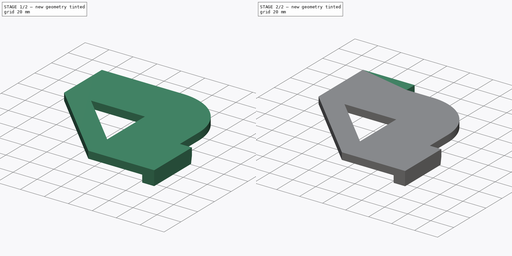
[diagram: build sequence overview — one tinted view per stage of 2, left to right]
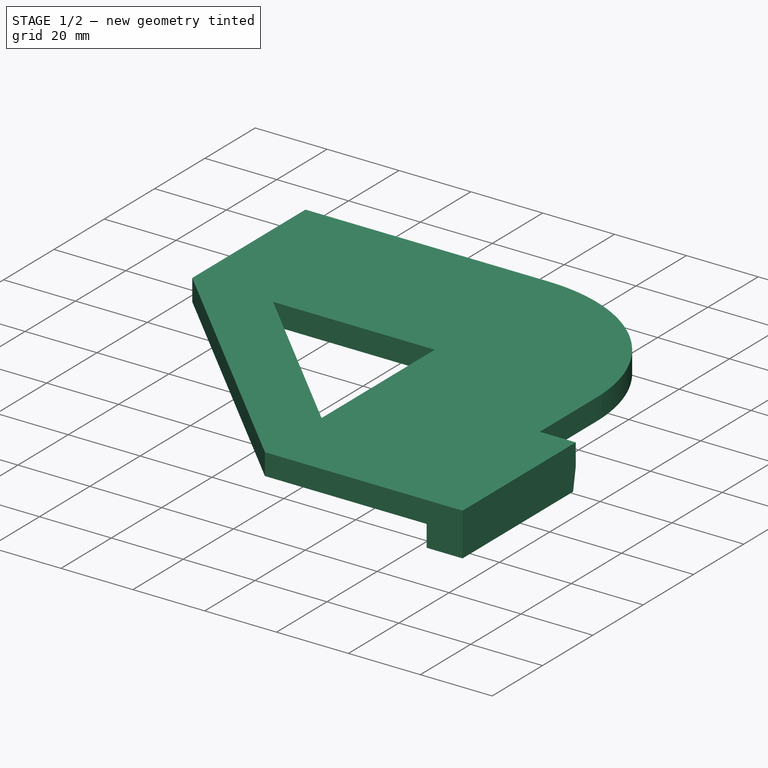
[diagram: stage 1 of 2 — iso view after this stage's code; geometry added in this stage tinted green]
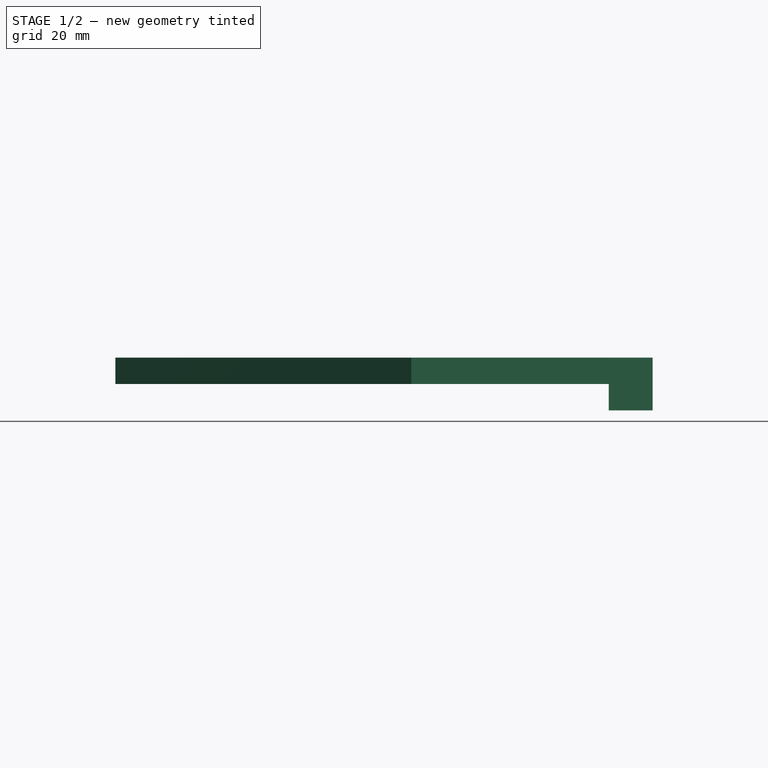
[diagram: stage 1 of 2 — front view after this stage's code; geometry added in this stage tinted green]
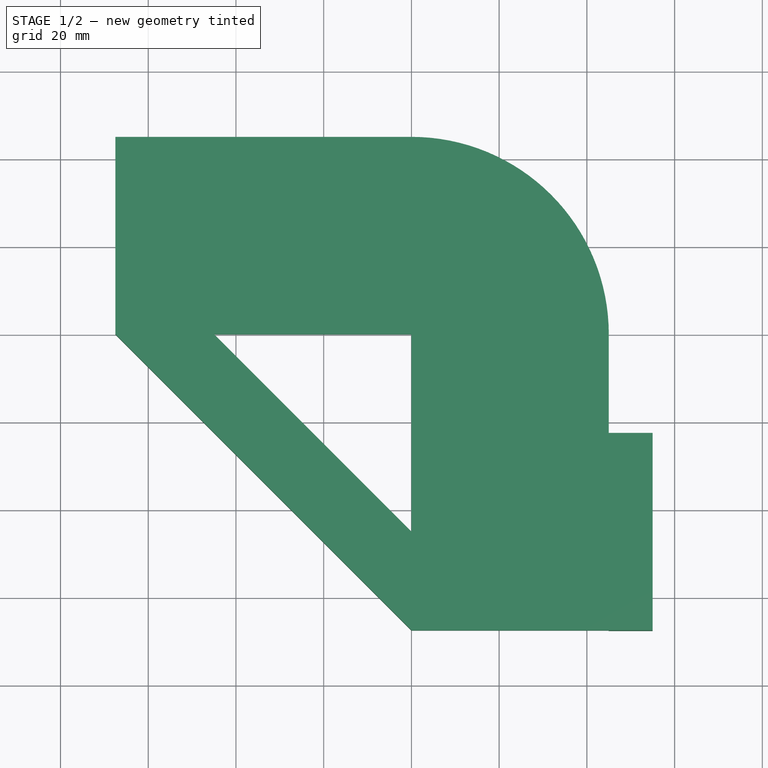
[diagram: stage 1 of 2 — top view after this stage's code; geometry added in this stage tinted green]
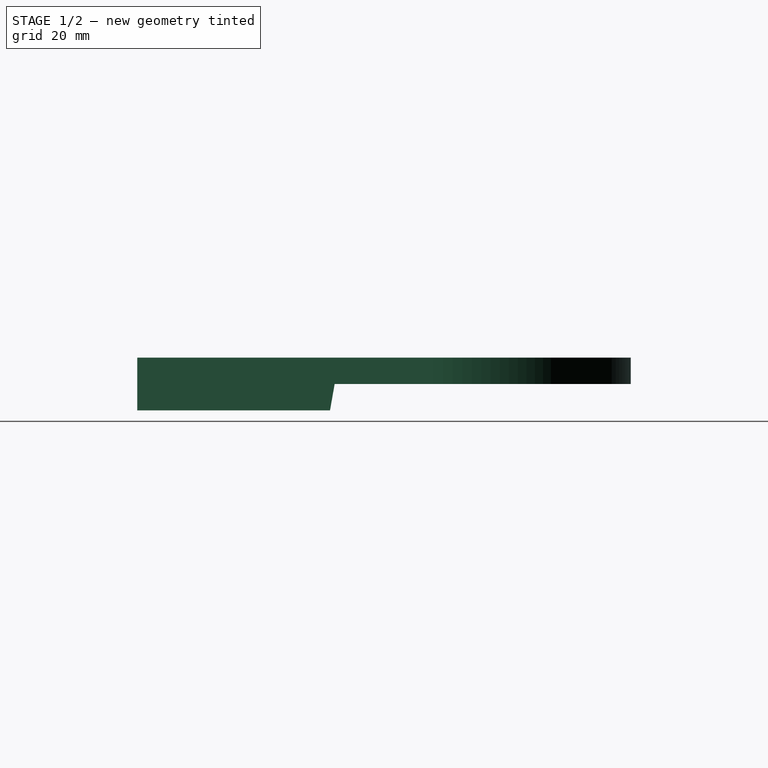
[diagram: stage 1 of 2 — right view after this stage's code; geometry added in this stage tinted green]
FCSTD DOCUMENT  (FreeCAD 1.0R39319 (Git))
Label: router-jig-radius
License: All rights reserved
LicenseURL: http://en.wikipedia.org/wiki/All_rights_reserved
objects: Sketcher::SketchObject×2, PartDesign::Pad×2, PartDesign::Plane×2, Spreadsheet::Sheet×1, PartDesign::Mirrored×1, PartDesign::Body×1
note: 15 computed .brp shape members not serialized (recipe doc carries the construction recipe); baked Part::Feature solids carry a one-line shape summary decoded from their .brp

FEATURE [Spreadsheet::Sheet] Spreadsheet
  cells = A1='radius; B1(radius)=45; A2='thickness; B2(thickness)=6; A3='anchor_thickness; B3(anchor_thickness)=10; A4='min_width; B4(min_width)=40
FEATURE [Sketcher::SketchObject] Sketch
  ArcFitTolerance = 1e-06
  AttachmentSupport = -> [XY_Plane]
  FullyConstrained = true
  MakeInternals = false
  MapMode = 5
  expr: Constraints[25] = max(Spreadsheet.radius; Spreadsheet.min_width - 10)
  expr: Constraints[3] = Spreadsheet.radius
  expr: Constraints[9] = max(Spreadsheet.radius * 1.5; Spreadsheet.min_width)
  sketch-geometry (9):
    g0: ArcOfCircle CenterX=0 CenterY=0 CenterZ=0 NormalX=0 NormalY=0 NormalZ=1 AngleXU=0 Radius=45 StartAngle=0 EndAngle=1.5708
    g1: LineSegment StartX=2.8e-15 StartY=45 StartZ=0 EndX=-67.5 EndY=45 EndZ=0
    g2: LineSegment StartX=45 StartY=0 StartZ=0 EndX=45 EndY=-67.5 EndZ=0
    g3: LineSegment StartX=-67.5 StartY=45 StartZ=0 EndX=-67.5 EndY=0 EndZ=0
    g4: LineSegment StartX=45 StartY=-67.5 StartZ=0 EndX=0 EndY=-67.5 EndZ=0
    g5: LineSegment StartX=-67.5 StartY=0 StartZ=0 EndX=0 EndY=-67.5 EndZ=0
    g6: LineSegment StartX=0 StartY=0 StartZ=0 EndX=-45 EndY=0 EndZ=0
    g7: LineSegment StartX=-45 StartY=0 StartZ=0 EndX=0 EndY=-45 EndZ=0
    g8: LineSegment StartX=0 StartY=-45 StartZ=0 EndX=0 EndY=0 EndZ=0
  constraints (26):
    c: Coincident(g0,g-1)
    c: PointOnObject(g0,g-1)
    c: PointOnObject(g0,g-2)
    c: Radius(g0) = 45
    c: Coincident(g1,g0)
    c: Horizontal(g1)
    c: Coincident(g2,g0)
    c: Vertical(g2)
    c: Equal(g2,g1)
    c: DistanceX(g1,g1) = 67.5
    c: Coincident(g3,g1)
    c: PointOnObject(g3,g-1)
    c: Vertical(g3)
    c: Coincident(g4,g2)
    c: PointOnObject(g4,g-2)
    c: Horizontal(g4)
    c: Coincident(g5,g3)
    c: Coincident(g5,g4)
    c: Coincident(g6,g0)
    c: PointOnObject(g6,g-1)
    c: Coincident(g6,g7)
    c: PointOnObject(g7,g-2)
    c: Coincident(g7,g8)
    c: Coincident(g8,g6)
    c: Equal(g6,g8)
    c: DistanceX(g6,g6) = 45
FEATURE [PartDesign::Pad] Pad
  Direction = (0,0,1)
  Length = 6
  Length2 = 10
  Profile = -> Sketch
  ReferenceAxis = -> Sketch [N_Axis]
  Refine = true
  Suppressed = false
  Type = 0
  expr: Length = Spreadsheet.thickness
FEATURE [PartDesign::Plane] DatumPlane
  AttachmentOffset = pos=(0,0,45) rot=(0,0,1;0rad)
  AttachmentSupport = -> [YZ_Plane]
  Length = 138.152
  MapMode = 5
  Placement = pos=(45,0,0) rot=(0.57735,0.57735,0.57735;2.0944rad)
  ResizeMode = 0
  Width = 65.6525
  expr: .AttachmentOffset.Base.z = Spreadsheet.radius
FEATURE [Sketcher::SketchObject] Sketch001
  ArcFitTolerance = 1e-06
  AttachmentSupport = -> [DatumPlane]
  FullyConstrained = true
  MakeInternals = false
  MapMode = 5
  Placement = pos=(45,0,0) rot=(0.57735,0.57735,0.57735;2.0944rad)
  expr: Constraints[5] = Spreadsheet.thickness
  expr: Constraints[6] = 2 * Spreadsheet.thickness
  expr: Constraints[7] = min(Spreadsheet.radius; max(Spreadsheet.radius * 2 - 20; 5))
  expr: Constraints[8] = Spreadsheet.radius * 1.5
  sketch-geometry (5):
    g0: LineSegment StartX=-67.5 StartY=6 StartZ=0 EndX=-67.5 EndY=-6 EndZ=0
    g1: LineSegment StartX=-67.5 StartY=-6 StartZ=0 EndX=-23.558 EndY=-6 EndZ=0
    g2: LineSegment StartX=-22.5 StartY=6 StartZ=0 EndX=-67.5 EndY=6 EndZ=0
    g3: LineSegment StartX=-22.5 StartY=6 StartZ=0 EndX=-22.5 EndY=0 EndZ=0
    g4: LineSegment StartX=-22.5 StartY=0 StartZ=0 EndX=-23.558 EndY=-6 EndZ=0
  constraints (15):
    c: Coincident(g0,g1)
    c: Coincident(g2,g0)
    c: Vertical(g0)
    c: Horizontal(g1)
    c: Horizontal(g2)
    c: DistanceY(g-1,g0) = 6
    c: DistanceY(g0,g0) = 12
    c: DistanceX(g2,g2) = 45
    c: Distance(g0,g-2) = 67.5
    c: Coincident(g3,g2)
    c: PointOnObject(g3,g-1)
    c: Vertical(g3)
    c: Coincident(g4,g3)
    c: Angle(g2,g4) = 1.39626
    c: Coincident(g4,g1)
FEATURE [PartDesign::Pad] Pad001
  BaseFeature = -> Pad
  Direction = (1,0,0)
  Length = 10
  Length2 = 10
  Profile = -> Sketch001
  ReferenceAxis = -> Sketch001 [N_Axis]
  Refine = true
  Suppressed = false
  Type = 0
  expr: Length = Spreadsheet.anchor_thickness
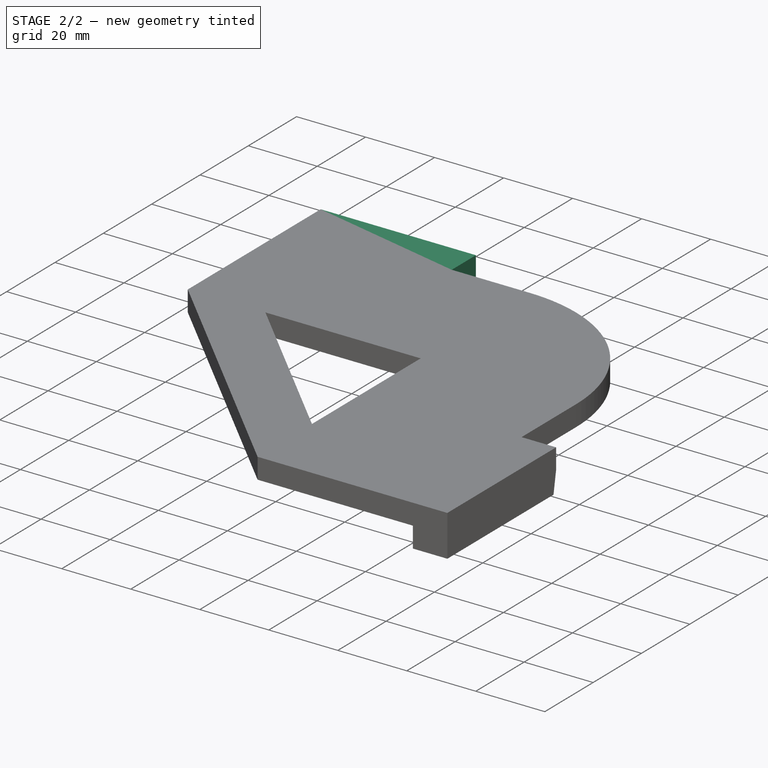
[diagram: stage 2 of 2 — iso view after this stage's code; geometry added in this stage tinted green]
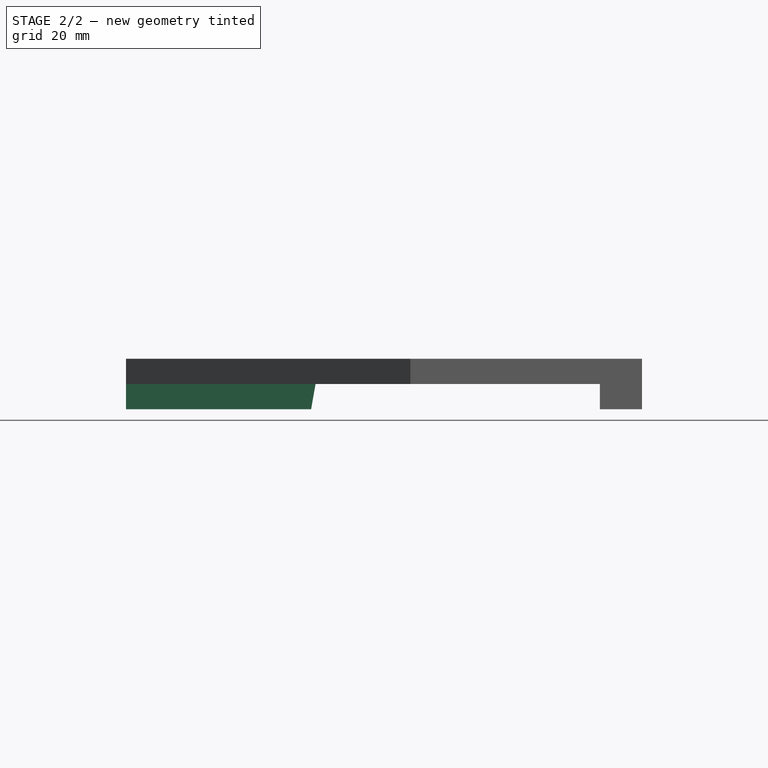
[diagram: stage 2 of 2 — front view after this stage's code; geometry added in this stage tinted green]
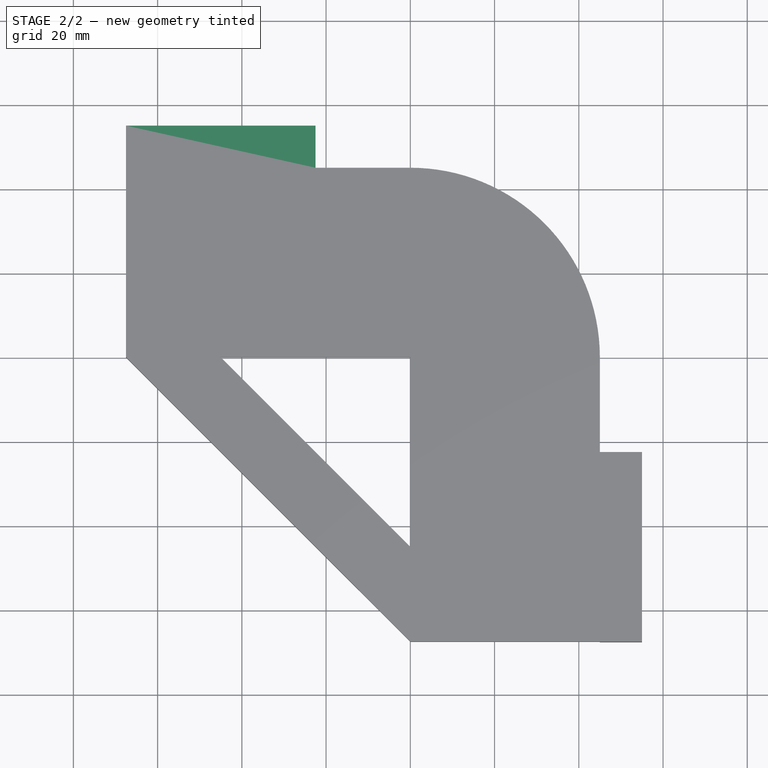
[diagram: stage 2 of 2 — top view after this stage's code; geometry added in this stage tinted green]
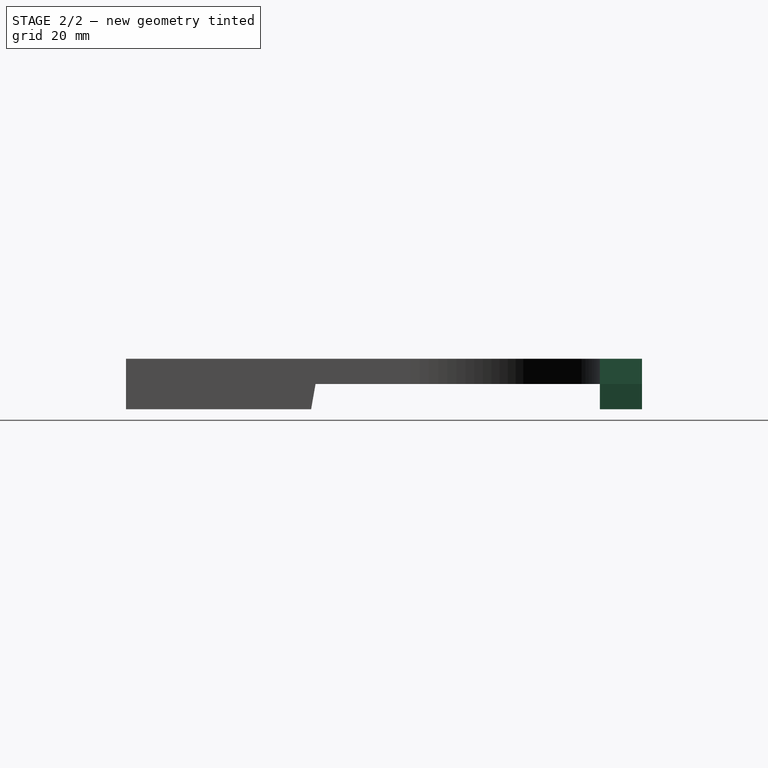
[diagram: stage 2 of 2 — right view after this stage's code; geometry added in this stage tinted green]
FEATURE [PartDesign::Plane] DatumPlane001
  AttachmentOffset = pos=(0,0,0) rot=(0,1,0;2.35619rad)
  AttachmentSupport = -> [YZ_Plane]
  Length = 191.855
  MapMode = 5
  Placement = pos=(0,0,0) rot=(-0.281085,0.678598,0.678598;3.68962rad)
  ResizeMode = 0
  Width = 68.614
FEATURE [PartDesign::Mirrored] Mirrored
  BaseFeature = -> Pad001
  MirrorPlane = -> DatumPlane001
  Originals = -> [Pad001]
  Refine = true
  Suppressed = false
  TransformMode = 0
FEATURE [PartDesign::Body] Body
  AllowCompound = false
  Group = -> [Sketch,Pad,DatumPlane,Sketch001,Pad001,DatumPlane001,Mirrored]
  Origin = -> Origin
  Tip = -> Mirrored
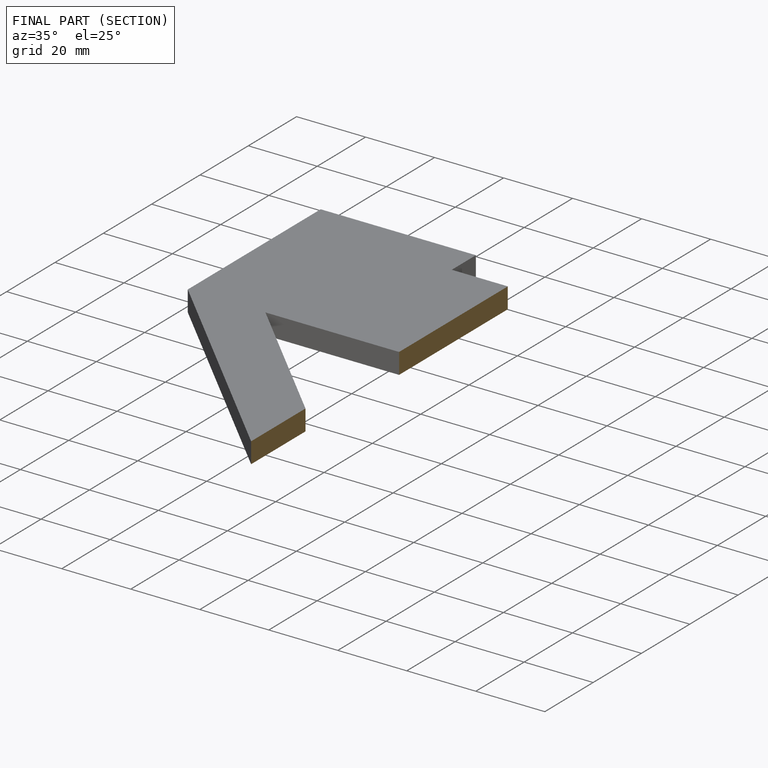
[diagram: finished part — half-section view (interior)]
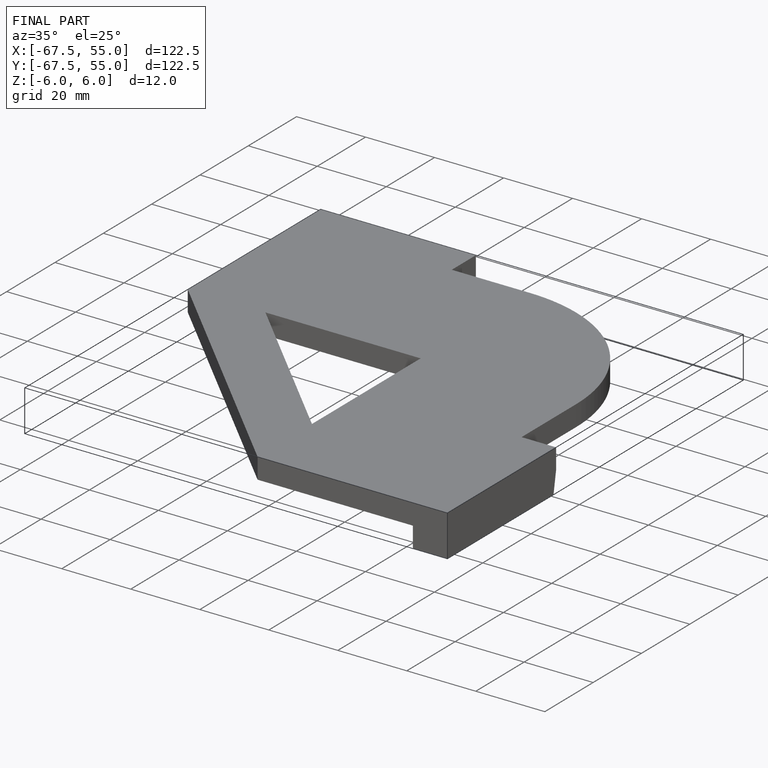
[diagram: finished part — iso view with bounding-box wireframe]
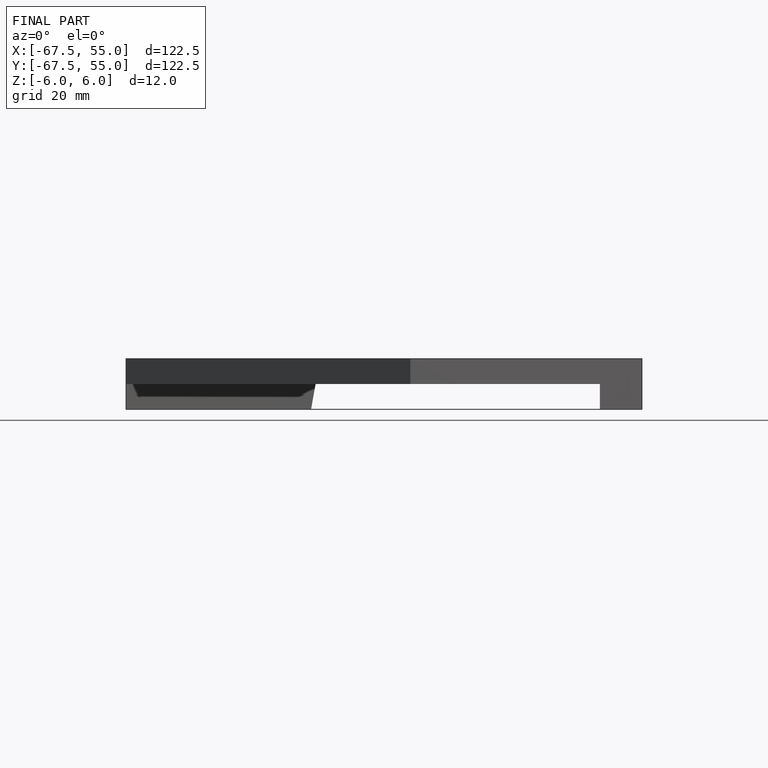
[diagram: finished part — front view with bounding-box wireframe]
